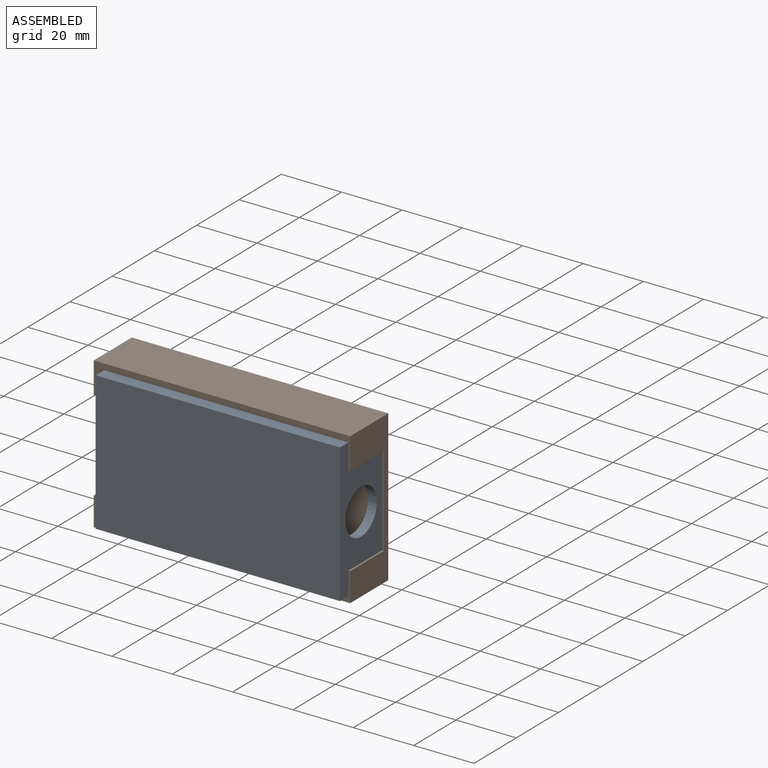
[diagram: assembled view]
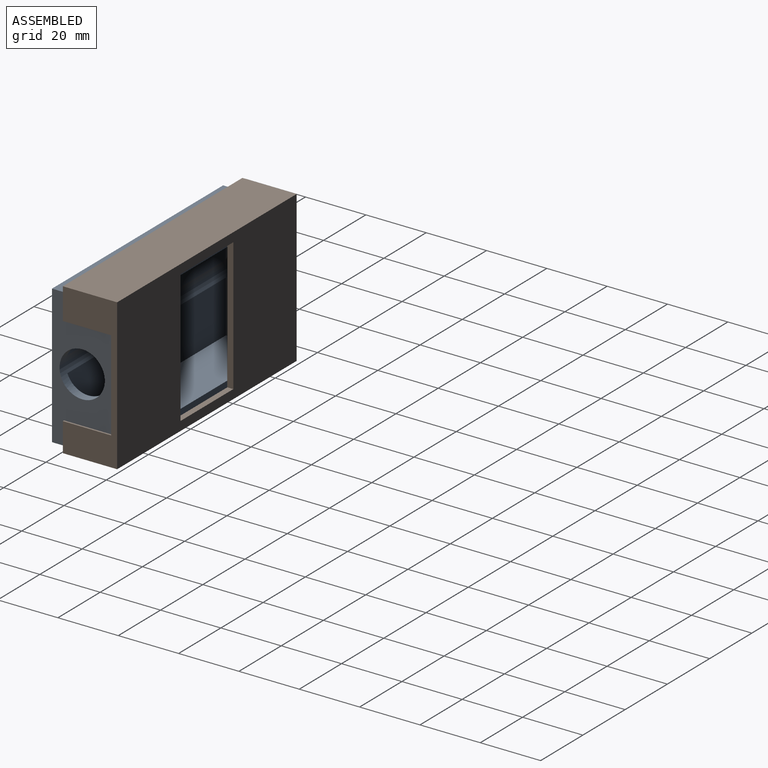
[diagram: assembled view, second angle]
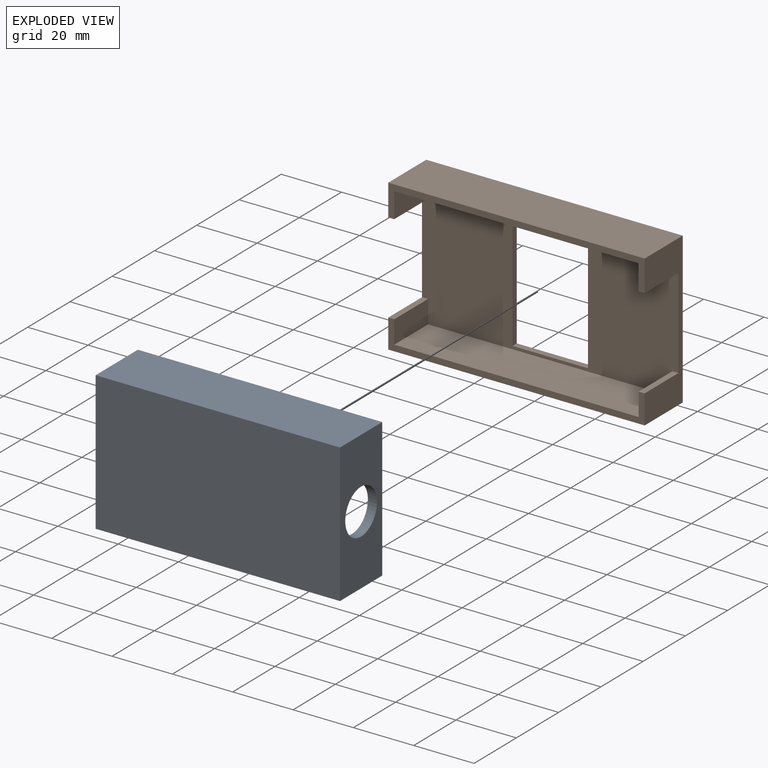
[diagram: exploded view]
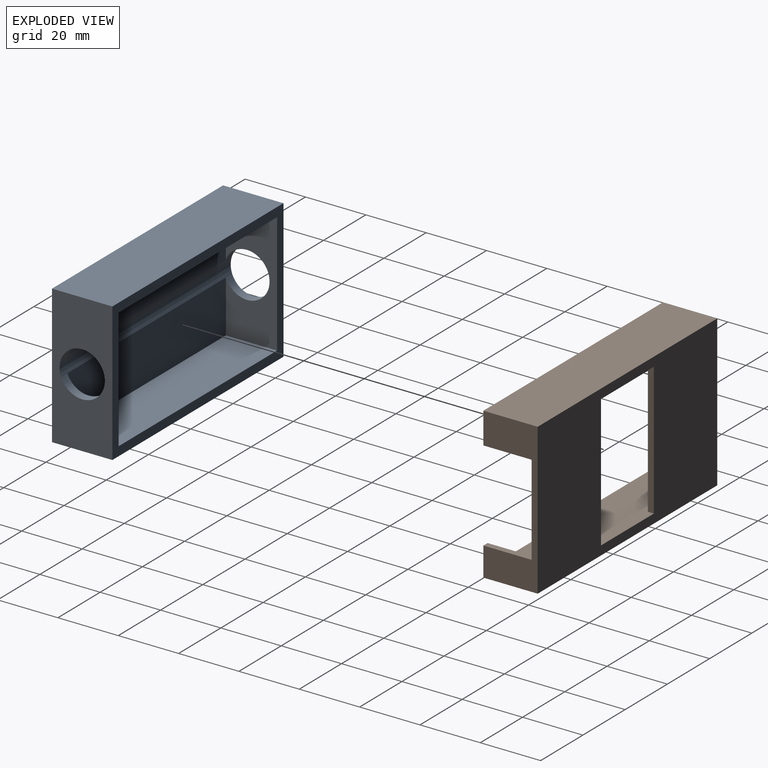
[diagram: exploded view, second angle]
ASSEMBLY  parts=2 mates=2
PART A: 13 faces, bbox 81x20x46 mm
  f0: plane 75x17.31mm, normal (0,1,0), area 1298.1mm2, adj f7,f8,f10,f12
  f1: plane 81x46mm, normal (0,1,0), area 726mm2, adj f2,f3,f4,f5,f7,f8,f9,f10
  f2: plane 81x20mm, normal (0,0,1), area 1620mm2, adj f1,f3,f5,f6
  f3: plane 46x20mm, normal (-1,0,0), area 743.3mm2, adj f1,f2,f4,f6,f12
  f4: plane 81x20mm, normal (0,0,-1), area 1620mm2, adj f1,f3,f5,f6
  f5: plane 46x20mm, normal (1,0,0), area 743.3mm2, adj f1,f2,f4,f6,f12
  f6: plane 81x46mm, normal (0,-1,0), area 3726mm2, adj f2,f3,f4,f5
  f7: plane 75x17mm, normal (0,0,-1), area 1275mm2, adj f0,f1,f8,f10
  f8: plane 40x17mm, normal (-1,0,0), area 505.1mm2, adj f0,f1,f7,f9,f11,f12
  f9: plane 75x17mm, normal (0,0,1), area 1275mm2, adj f1,f8,f10,f11
  f10: plane 40x17mm, normal (1,0,0), area 505.1mm2, adj f0,f1,f7,f9,f11,f12
  f11: plane 75x17.31mm, normal (0,1,0), area 1298.1mm2, adj f8,f9,f10,f12
  f12: cylinder r=7.5mm len=81mm, axis (1,0,0), area 695.9mm2, adj f0,f3,f5,f8,f10,f11
PART B: 22 faces, bbox 85x18x50 mm
  f0: plane 85x50mm, normal (0,1,0), area 3150mm2, adj f3,f7,f8,f9,f18,f19,f20,f21
  f1: plane 85x46mm, normal (0,-1,0), area 2746mm2, adj f3,f4,f5,f8,f10,f11,f12,f13
  f2: plane 85x10.4mm, normal (0,-1,0), area 203.6mm2, adj f3,f4,f5,f7,f8,f10,f15,f16
  f3: plane 50x18mm, normal (1,0,0), area 420mm2, adj f0,f1,f2,f6,f7,f9,f14,f15
  f4: plane 16x8.4mm, normal (1,0,0), area 134.5mm2, adj f1,f2,f10,f16
  f5: plane 16x8.4mm, normal (-1,0,0), area 134.5mm2, adj f1,f2,f10,f15
  f6: plane 85x9.6mm, normal (0,-1,0), area 200.4mm2, adj f3,f8,f9,f11,f12,f13,f14,f17
  f7: plane 85x18mm, normal (0,0,1), area 1530mm2, adj f0,f2,f3,f8
  f8: plane 50x18mm, normal (-1,0,0), area 420mm2, adj f0,f1,f2,f6,f7,f9,f16,f17
  f9: plane 85x18mm, normal (0,0,-1), area 1530mm2, adj f0,f3,f6,f8
  f10: plane 81x16mm, normal (0,0,-1), area 1296mm2, adj f1,f2,f4,f5
  f11: plane 16x7.6mm, normal (1,0,0), area 121.5mm2, adj f1,f6,f12,f17
  f12: plane 81x16mm, normal (0,0,1), area 1296mm2, adj f1,f6,f11,f13
  f13: plane 16x7.6mm, normal (-1,0,0), area 121.5mm2, adj f1,f6,f12,f14
  f14: plane 16x2mm, normal (0,0,1), area 32mm2, adj f1,f3,f6,f13
  f15: plane 16x2mm, normal (0,0,-1), area 32mm2, adj f1,f2,f3,f5
  f16: plane 16x2mm, normal (0,0,-1), area 32mm2, adj f1,f2,f4,f8
  f17: plane 16x2mm, normal (0,0,1), area 32mm2, adj f1,f6,f8,f11
  f18: plane 44x2mm, normal (1,0,0), area 88mm2, adj f0,f1,f19,f21
  f19: plane 25x2mm, normal (0,0,-1), area 50mm2, adj f0,f1,f18,f20
  f20: plane 44x2mm, normal (-1,0,0), area 88mm2, adj f0,f1,f19,f21
  f21: plane 25x2mm, normal (0,0,1), area 50mm2, adj f0,f1,f18,f20
PLACE A t=(32.13,-21.67,23.6)mm
PLACE B t=(25.22,-19.67,2.33)mm
MATE planar B.f1 <-> A.f1  axis (0,-1,0) through (32.8,-21.67,2.72)mm
MATE planar B.f10 <-> A.f2  axis (0,0,-1) through (32.8,-29.67,25.74)mm
